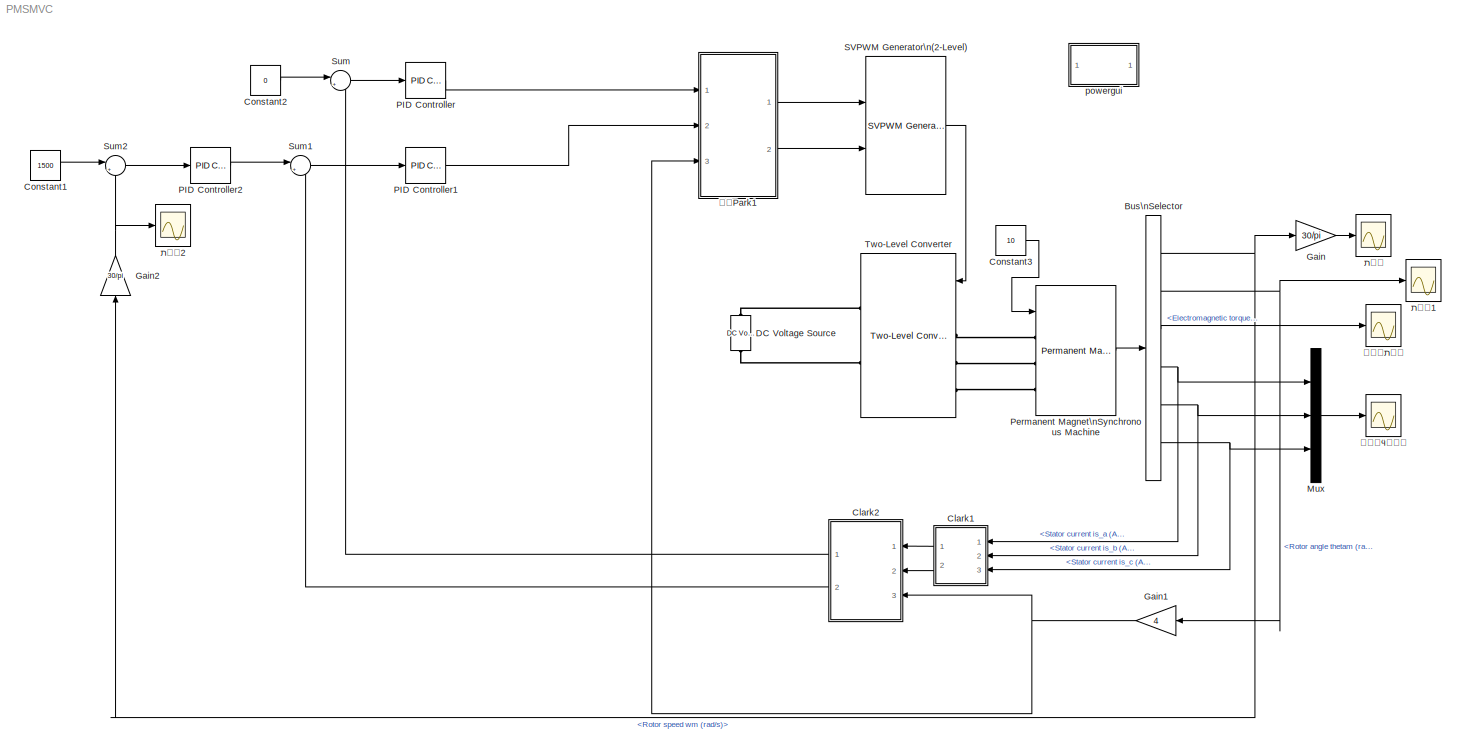
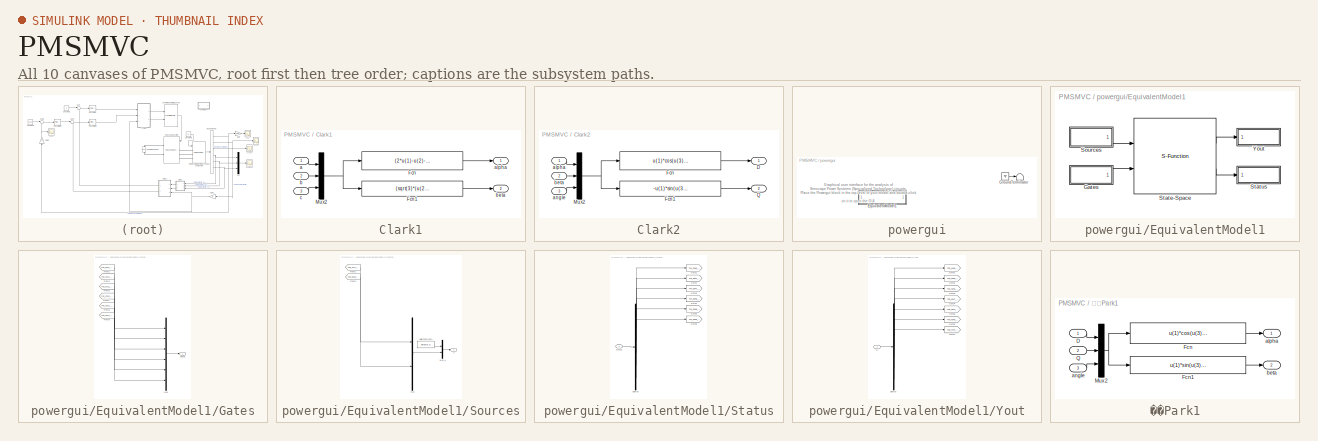
[diagram: thumbnail index - all 10 canvases of the model, root first then tree order]
MODEL PMSMVC
KIND model
BLOCK [BusSelector] Bus\nSelector
  OutputSignals = Rotor speed wm (rad/s),Rotor angle thetam (rad),Electromagnetic torque Te (N*m),Stator current is_a (A),Stator current is_b (A),Stator current is_c (A)
  Ports = [1, 6]
  SID = 5
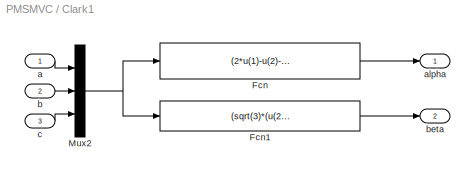
BLOCK [SubSystem] Clark1
  FunctionWithSeparateData = off
  MaskHideContents = off
  MinAlgLoopOccurrences = off
  Opaque = off
  Ports = [3, 2]
  PropExecContextOutsideSubsystem = off
  RTWSystemCode = Auto
  RequestExecContextInheritance = off
  SID = 32
BLOCK [Fcn] Clark1/Fcn
  Expr = (2*u(1)-u(2)-u(3))/3
  SID = 36
BLOCK [Fcn] Clark1/Fcn1
  Expr = (sqrt(3)*(u(2)-u(3)))/3
  SID = 37
BLOCK [Mux] Clark1/Mux2
  DisplayOption = bar
  Inputs = 3
  Ports = [3, 1]
  SID = 38
BLOCK [Inport] Clark1/a
  IconDisplay = Port number
  SID = 33
BLOCK [Outport] Clark1/alpha
  IconDisplay = Port number
  SID = 39
BLOCK [Inport] Clark1/b
  IconDisplay = Port number
  Port = 2
  SID = 34
BLOCK [Outport] Clark1/beta
  IconDisplay = Port number
  Port = 2
  SID = 40
BLOCK [Inport] Clark1/c
  IconDisplay = Port number
  Port = 3
  SID = 35
BLOCK [SubSystem] Clark2
  FunctionWithSeparateData = off
  MaskHideContents = off
  MinAlgLoopOccurrences = off
  Opaque = off
  Ports = [3, 2]
  PropExecContextOutsideSubsystem = off
  RTWSystemCode = Auto
  RequestExecContextInheritance = off
  SID = 41
BLOCK [Outport] Clark2/D
  IconDisplay = Port number
  SID = 48
BLOCK [Fcn] Clark2/Fcn
  Expr = u(1)*cos(u(3))+u(2)*sin(u(3))
  SID = 45
BLOCK [Fcn] Clark2/Fcn1
  Expr = -u(1)*sin(u(3))+u(2)*cos(u(3))
  SID = 46
BLOCK [Mux] Clark2/Mux2
  DisplayOption = bar
  Inputs = 3
  Ports = [3, 1]
  SID = 47
BLOCK [Outport] Clark2/Q
  IconDisplay = Port number
  Port = 2
  SID = 49
BLOCK [Inport] Clark2/alpha
  IconDisplay = Port number
  SID = 42
BLOCK [Inport] Clark2/angle
  IconDisplay = Port number
  Port = 3
  SID = 44
BLOCK [Inport] Clark2/beta
  IconDisplay = Port number
  Port = 2
  SID = 43
BLOCK [Constant] Constant1
  SID = 27
  Value = 1500
BLOCK [Constant] Constant2
  SID = 28
  Value = 0
BLOCK [Constant] Constant3
  SID = 31
  Value = 10
BLOCK [Reference] DC Voltage Source  REF=powerlib/Electrical\nSources/DC Voltage Source
  Amplitude = 560
  Measurements = None
  Ports = [0, 0, 0, 0, 0, 1, 1]
  SID = 3
  SourceBlock = powerlib/Electrical\nSources/DC Voltage Source
  SourceType = DC Voltage Source
BLOCK [Gain] Gain
  Gain = 30/pi
  OutDataTypeMode = Inherit via internal rule
  OutDataTypeStr = Inherit: Inherit via internal rule
  ParamDataTypeStr = Inherit: Inherit via internal rule
  ParameterDataTypeMode = Inherit via internal rule
  SID = 7
  SaturateOnIntegerOverflow = off
BLOCK [Gain] Gain1
  Gain = 4
  OutDataTypeMode = Inherit via internal rule
  OutDataTypeStr = Inherit: Inherit via internal rule
  ParamDataTypeStr = Inherit: Inherit via internal rule
  ParameterDataTypeMode = Inherit via internal rule
  SID = 15
  SaturateOnIntegerOverflow = off
BLOCK [Gain] Gain2
  Gain = 30/pi
  OutDataTypeMode = Inherit via internal rule
  OutDataTypeStr = Inherit: Inherit via internal rule
  ParamDataTypeStr = Inherit: Inherit via internal rule
  ParameterDataTypeMode = Inherit via internal rule
  SID = 26
  SaturateOnIntegerOverflow = off
BLOCK [Mux] Mux
  DisplayOption = bar
  Inputs = 3
  Ports = [3, 1]
  SID = 10
BLOCK [Reference] PID Controller  REF=simulink/Continuous/PID Controller
  AntiWindupMode = none
  Controller = PI
  ControllerParametersSource = internal
  D = 0
  DGainOutDataTypeStr = Inherit: Inherit via internal rule
  DOutDataTypeStr = Inherit: Inherit via internal rule
  DOutMax = []
  DOutMin = []
  DParamDataTypeStr = Inherit: Inherit via internal rule
  DParamMax = []
  DParamMin = []
  DProdOutDataTypeStr = Inherit: Inherit via internal rule
  DifferentiatorICPrevScaledInput = 0
  DifferentiatorOutDataTypeStr = Inherit: Inherit via internal rule
  DifferentiatorOutMax = []
  DifferentiatorOutMin = []
  ExternalReset = none
  FilterContinuousStateAttributes = ''
  FilterMethod = Forward Euler
  FilterOutDataTypeStr = Inherit: Inherit via internal rule
  FilterOutMax = []
  FilterOutMin = []
  FilterRTWStateStorageClass = Auto
  FilterStateMustResolveToSignalObject = off
  Form = Parallel
  I = 5
  IGainOutDataTypeStr = Inherit: Inherit via internal rule
  IOutDataTypeStr = Inherit: Inherit via internal rule
  IOutMax = []
  IOutMin = []
  IParamDataTypeStr = Inherit: Inherit via internal rule
  IParamMax = []
  IParamMin = []
  IProdOutDataTypeStr = Inherit: Inherit via internal rule
  IgnoreLimit = off
  InitialConditionForFilter = 0
  InitialConditionForIntegrator = 0
  InitialConditionSource = internal
  IntegratorContinuousStateAttributes = ''
  IntegratorMethod = Forward Euler
  IntegratorOutDataTypeStr = Inherit: Inherit via internal rule
  IntegratorOutMax = []
  IntegratorOutMin = []
  IntegratorRTWStateStorageClass = Auto
  IntegratorStateMustResolveToSignalObject = off
  Kb = 1
  KbOutDataTypeStr = Inherit: Inherit via internal rule
  KbOutMax = []
  KbOutMin = []
  KbParamDataTypeStr = Inherit: Inherit via internal rule
  KbParamMax = []
  KbParamMin = []
  Kt = 1
  KtOutDataTypeStr = Inherit: Inherit via internal rule
  KtOutMax = []
  KtOutMin = []
  KtParamDataTypeStr = Inherit: Inherit via internal rule
  KtParamMax = []
  KtParamMin = []
  LimitOutput = off
  LinearizeAsGain = on
  LockScale = off
  LowerSaturationLimit = -inf
  N = 100
  NGainOutDataTypeStr = Inherit: Inherit via internal rule
  NOutDataTypeStr = Inherit: Inherit via internal rule
  NOutMax = []
  NOutMin = []
  NParamDataTypeStr = Inherit: Inherit via internal rule
  NParamMax = []
  NParamMin = []
  NProdOutDataTypeStr = Inherit: Inherit via internal rule
  P = 0.4
  PGainOutDataTypeStr = Inherit: Inherit via internal rule
  POutDataTypeStr = Inherit: Inherit via internal rule
  POutMax = []
  POutMin = []
  PParamDataTypeStr = Inherit: Inherit via internal rule
  PParamMax = []
  PParamMin = []
  PProdOutDataTypeStr = Inherit: Inherit via internal rule
  Ports = [1, 1]
  RndMeth = Floor
  SID = 16
  SampleTime = -1
  SaturateOnIntegerOverflow = off
  SaturationOutDataTypeStr = Inherit: Same as input
  SaturationOutMax = []
  SaturationOutMin = []
  SourceBlock = simulink/Continuous/PID Controller
  SourceType = PID 1dof
  SumAccumDataTypeStr = Inherit: Inherit via internal rule
  SumDAccumDataTypeStr = Inherit: Inherit via internal rule
  SumDOutDataTypeStr = Inherit: Inherit via internal rule
  SumDOutMax = []
  SumDOutMin = []
  SumI1AccumDataTypeStr = Inherit: Inherit via internal rule
  SumI1OutDataTypeStr = Inherit: Inherit via internal rule
  SumI1OutMax = []
  SumI1OutMin = []
  SumI2AccumDataTypeStr = Inherit: Inherit via internal rule
  SumI2OutDataTypeStr = Inherit: Inherit via internal rule
  SumI2OutMax = []
  SumI2OutMin = []
  SumI3AccumDataTypeStr = Inherit: Inherit via internal rule
  SumI3OutDataTypeStr = Inherit: Inherit via internal rule
  SumI3OutMax = []
  SumI3OutMin = []
  SumOutDataTypeStr = Inherit: Inherit via internal rule
  SumOutMax = []
  SumOutMin = []
  TimeDomain = Discrete-time
  TrackingMode = off
  UpperSaturationLimit = inf
  UseFilter = on
  ZeroCross = on
BLOCK [Reference] PID Controller1  REF=simulink/Continuous/PID Controller
  AntiWindupMode = none
  Controller = PI
  ControllerParametersSource = internal
  D = 0
  DGainOutDataTypeStr = Inherit: Inherit via internal rule
  DOutDataTypeStr = Inherit: Inherit via internal rule
  DOutMax = []
  DOutMin = []
  DParamDataTypeStr = Inherit: Inherit via internal rule
  DParamMax = []
  DParamMin = []
  DProdOutDataTypeStr = Inherit: Inherit via internal rule
  DifferentiatorICPrevScaledInput = 0
  DifferentiatorOutDataTypeStr = Inherit: Inherit via internal rule
  DifferentiatorOutMax = []
  DifferentiatorOutMin = []
  ExternalReset = none
  FilterContinuousStateAttributes = ''
  FilterMethod = Forward Euler
  FilterOutDataTypeStr = Inherit: Inherit via internal rule
  FilterOutMax = []
  FilterOutMin = []
  FilterRTWStateStorageClass = Auto
  FilterStateMustResolveToSignalObject = off
  Form = Parallel
  I = 5
  IGainOutDataTypeStr = Inherit: Inherit via internal rule
  IOutDataTypeStr = Inherit: Inherit via internal rule
  IOutMax = []
  IOutMin = []
  IParamDataTypeStr = Inherit: Inherit via internal rule
  IParamMax = []
  IParamMin = []
  IProdOutDataTypeStr = Inherit: Inherit via internal rule
  IgnoreLimit = off
  InitialConditionForFilter = 0
  InitialConditionForIntegrator = 0
  InitialConditionSource = internal
  IntegratorContinuousStateAttributes = ''
  IntegratorMethod = Forward Euler
  IntegratorOutDataTypeStr = Inherit: Inherit via internal rule
  IntegratorOutMax = []
  IntegratorOutMin = []
  IntegratorRTWStateStorageClass = Auto
  IntegratorStateMustResolveToSignalObject = off
  Kb = 1
  KbOutDataTypeStr = Inherit: Inherit via internal rule
  KbOutMax = []
  KbOutMin = []
  KbParamDataTypeStr = Inherit: Inherit via internal rule
  KbParamMax = []
  KbParamMin = []
  Kt = 1
  KtOutDataTypeStr = Inherit: Inherit via internal rule
  KtOutMax = []
  KtOutMin = []
  KtParamDataTypeStr = Inherit: Inherit via internal rule
  KtParamMax = []
  KtParamMin = []
  LimitOutput = off
  LinearizeAsGain = on
  LockScale = off
  LowerSaturationLimit = -inf
  N = 100
  NGainOutDataTypeStr = Inherit: Inherit via internal rule
  NOutDataTypeStr = Inherit: Inherit via internal rule
  NOutMax = []
  NOutMin = []
  NParamDataTypeStr = Inherit: Inherit via internal rule
  NParamMax = []
  NParamMin = []
  NProdOutDataTypeStr = Inherit: Inherit via internal rule
  P = 0.4
  PGainOutDataTypeStr = Inherit: Inherit via internal rule
  POutDataTypeStr = Inherit: Inherit via internal rule
  POutMax = []
  POutMin = []
  PParamDataTypeStr = Inherit: Inherit via internal rule
  PParamMax = []
  PParamMin = []
  PProdOutDataTypeStr = Inherit: Inherit via internal rule
  Ports = [1, 1]
  RndMeth = Floor
  SID = 17
  SampleTime = -1
  SaturateOnIntegerOverflow = off
  SaturationOutDataTypeStr = Inherit: Same as input
  SaturationOutMax = []
  SaturationOutMin = []
  SourceBlock = simulink/Continuous/PID Controller
  SourceType = PID 1dof
  SumAccumDataTypeStr = Inherit: Inherit via internal rule
  SumDAccumDataTypeStr = Inherit: Inherit via internal rule
  SumDOutDataTypeStr = Inherit: Inherit via internal rule
  SumDOutMax = []
  SumDOutMin = []
  SumI1AccumDataTypeStr = Inherit: Inherit via internal rule
  SumI1OutDataTypeStr = Inherit: Inherit via internal rule
  SumI1OutMax = []
  SumI1OutMin = []
  SumI2AccumDataTypeStr = Inherit: Inherit via internal rule
  SumI2OutDataTypeStr = Inherit: Inherit via internal rule
  SumI2OutMax = []
  SumI2OutMin = []
  SumI3AccumDataTypeStr = Inherit: Inherit via internal rule
  SumI3OutDataTypeStr = Inherit: Inherit via internal rule
  SumI3OutMax = []
  SumI3OutMin = []
  SumOutDataTypeStr = Inherit: Inherit via internal rule
  SumOutMax = []
  SumOutMin = []
  TimeDomain = Discrete-time
  TrackingMode = off
  UpperSaturationLimit = inf
  UseFilter = on
  ZeroCross = on
BLOCK [Reference] PID Controller2  REF=simulink/Continuous/PID Controller
  AntiWindupMode = none
  Controller = PI
  ControllerParametersSource = internal
  D = 0
  DGainOutDataTypeStr = Inherit: Inherit via internal rule
  DOutDataTypeStr = Inherit: Inherit via internal rule
  DOutMax = []
  DOutMin = []
  DParamDataTypeStr = Inherit: Inherit via internal rule
  DParamMax = []
  DParamMin = []
  DProdOutDataTypeStr = Inherit: Inherit via internal rule
  DifferentiatorICPrevScaledInput = 0
  DifferentiatorOutDataTypeStr = Inherit: Inherit via internal rule
  DifferentiatorOutMax = []
  DifferentiatorOutMin = []
  ExternalReset = none
  FilterContinuousStateAttributes = ''
  FilterMethod = Forward Euler
  FilterOutDataTypeStr = Inherit: Inherit via internal rule
  FilterOutMax = []
  FilterOutMin = []
  FilterRTWStateStorageClass = Auto
  FilterStateMustResolveToSignalObject = off
  Form = Parallel
  I = 10
  IGainOutDataTypeStr = Inherit: Inherit via internal rule
  IOutDataTypeStr = Inherit: Inherit via internal rule
  IOutMax = []
  IOutMin = []
  IParamDataTypeStr = Inherit: Inherit via internal rule
  IParamMax = []
  IParamMin = []
  IProdOutDataTypeStr = Inherit: Inherit via internal rule
  IgnoreLimit = off
  InitialConditionForFilter = 0
  InitialConditionForIntegrator = 0
  InitialConditionSource = internal
  IntegratorContinuousStateAttributes = ''
  IntegratorMethod = Forward Euler
  IntegratorOutDataTypeStr = Inherit: Inherit via internal rule
  IntegratorOutMax = []
  IntegratorOutMin = []
  IntegratorRTWStateStorageClass = Auto
  IntegratorStateMustResolveToSignalObject = off
  Kb = 1
  KbOutDataTypeStr = Inherit: Inherit via internal rule
  KbOutMax = []
  KbOutMin = []
  KbParamDataTypeStr = Inherit: Inherit via internal rule
  KbParamMax = []
  KbParamMin = []
  Kt = 1
  KtOutDataTypeStr = Inherit: Inherit via internal rule
  KtOutMax = []
  KtOutMin = []
  KtParamDataTypeStr = Inherit: Inherit via internal rule
  KtParamMax = []
  KtParamMin = []
  LimitOutput = off
  LinearizeAsGain = on
  LockScale = off
  LowerSaturationLimit = -30
  N = 100
  NGainOutDataTypeStr = Inherit: Inherit via internal rule
  NOutDataTypeStr = Inherit: Inherit via internal rule
  NOutMax = []
  NOutMin = []
  NParamDataTypeStr = Inherit: Inherit via internal rule
  NParamMax = []
  NParamMin = []
  NProdOutDataTypeStr = Inherit: Inherit via internal rule
  P = 0.25
  PGainOutDataTypeStr = Inherit: Inherit via internal rule
  POutDataTypeStr = Inherit: Inherit via internal rule
  POutMax = []
  POutMin = []
  PParamDataTypeStr = Inherit: Inherit via internal rule
  PParamMax = []
  PParamMin = []
  PProdOutDataTypeStr = Inherit: Inherit via internal rule
  Ports = [1, 1]
  RndMeth = Floor
  SID = 18
  SampleTime = -1
  SaturateOnIntegerOverflow = off
  SaturationOutDataTypeStr = Inherit: Same as input
  SaturationOutMax = []
  SaturationOutMin = []
  SourceBlock = simulink/Continuous/PID Controller
  SourceType = PID 1dof
  SumAccumDataTypeStr = Inherit: Inherit via internal rule
  SumDAccumDataTypeStr = Inherit: Inherit via internal rule
  SumDOutDataTypeStr = Inherit: Inherit via internal rule
  SumDOutMax = []
  SumDOutMin = []
  SumI1AccumDataTypeStr = Inherit: Inherit via internal rule
  SumI1OutDataTypeStr = Inherit: Inherit via internal rule
  SumI1OutMax = []
  SumI1OutMin = []
  SumI2AccumDataTypeStr = Inherit: Inherit via internal rule
  SumI2OutDataTypeStr = Inherit: Inherit via internal rule
  SumI2OutMax = []
  SumI2OutMin = []
  SumI3AccumDataTypeStr = Inherit: Inherit via internal rule
  SumI3OutDataTypeStr = Inherit: Inherit via internal rule
  SumI3OutMax = []
  SumI3OutMin = []
  SumOutDataTypeStr = Inherit: Inherit via internal rule
  SumOutMax = []
  SumOutMin = []
  TimeDomain = Discrete-time
  TrackingMode = off
  UpperSaturationLimit = 30
  UseFilter = on
  ZeroCross = on
BLOCK [Reference] Permanent Magnet\nSynchronous Machine  REF=powerlib/Machines/Permanent Magnet\nSynchronous Machine
  Flat = 120
  Flux = 0.1119
  FluxDistribution = Sinusoidal
  Inductance = 8.5e-3
  InitialConditions = [0,0, 0,0]
  InitialConditions5ph = [0 0 0 0 0 0]
  La = 0.00097
  MachineConstant = Flux linkage established by magnets (V.s)
  MeasurementBus = off
  Mechanical = [0.0016 0.0002024 4 0]
  MechanicalLoad = Torque Tm
  NbPhases = 3
  PolePairs = 4
  Ports = [1, 1, 0, 0, 0, 3]
  PresetModel = 11:  26.13 Nm 560 Vdc 3000 RPM - 27.3 Nm
  RefAngle = Aligned with phase A axis (original Park)
  Resistance = 0.11
  RotorType = Round
  SID = 1
  ShowDetailedParameters = on
  SourceBlock = powerlib/Machines/Permanent Magnet\nSynchronous Machine
  SourceType = Permanent Magnet Synchronous Machine
  TorqueCst = 0.6714
  TsBlock = -1
  TsPowergui = 0
  VoltageCst = 81.1857
  dqInductances = [8.5e-3,8.5e-3]
BLOCK [Reference] SVPWM Generator\n(2-Level)  REF=powerlib_meascontrol/Pulse & Signal\nGenerators/SVPWM Generator\n(2-Level)
  Fc = 6000
  InputType = alpha-beta components
  ParUref = [0.8 -30 50]
  Ports = [2, 1]
  SID = 12
  SourceBlock = powerlib_meascontrol/Pulse & Signal\nGenerators/SVPWM Generator\n(2-Level)
  SourceType = SVPWM Generator (2-Level)
  SwitchingPattern = Pattern #1
  Ts = 0
BLOCK [Sum] Sum
  IconShape = round
  InputSameDT = off
  Inputs = |+-
  OutDataTypeMode = Inherit via internal rule
  OutDataTypeStr = Inherit: Inherit via internal rule
  Ports = [2, 1]
  SID = 20
  SaturateOnIntegerOverflow = off
BLOCK [Sum] Sum1
  IconShape = round
  InputSameDT = off
  Inputs = |+-
  OutDataTypeMode = Inherit via internal rule
  OutDataTypeStr = Inherit: Inherit via internal rule
  Ports = [2, 1]
  SID = 21
  SaturateOnIntegerOverflow = off
BLOCK [Sum] Sum2
  IconShape = round
  InputSameDT = off
  Inputs = |+-
  OutDataTypeMode = Inherit via internal rule
  OutDataTypeStr = Inherit: Inherit via internal rule
  Ports = [2, 1]
  SID = 22
  SaturateOnIntegerOverflow = off
BLOCK [Reference] Two-Level Converter  REF=powerlib/Power\nElectronics/Two-Level Converter
  Cs = inf
  Cs_Diode = inf
  ModelType = Switching devices
  Ports = [2, 0, 0, 0, 0, 3, 2]
  Ron = 1e-3
  Ron_Diode = 1e-3
  Rs = 1e6
  Rs_CurrentSource = inf
  Rs_Diode = 1e6
  SID = 4
  SourceBlock = powerlib/Power\nElectronics/Two-Level Converter
  SourceType = Two-Level Converter
  Vf_Diode = 1e-3
  Vforward = [0,0]
BLOCK [SubSystem] powergui
  AncestorBlock = powerlib/powergui
  CopyFcn = powergui( 'Copy_Callback' , gcb , 0 , [ ] );
  DeleteFcn = % see geck 675031 powergui( 'Copy_Callback' , gcb , 1 , [ ] );\n                                                              \npowergui( 'CloseButton_Callback' , gcb , [ ] , [ ] );         \n
  FunctionWithSeparateData = off
  InitFcn = powergui( 'InitFcn_Callback' , gcb , 0 , [ ] );
  MaskCallbackString = powergui('SimulationType',[],[],gcb);|powergui('SolverType',[],[],gcb);|||powergui('SPID',[],[],gcb);||||||powergui('INTERPOLATE',[],[],gcb);||powergui('STORE',[],[],gcb);||||||||||||||||||||||||||||||||
  MaskDescription = Set simulation type, simulation parameters, and preferences.\n
  MaskDisplay = color('blue'),disp(message)
  MaskEnableString = on,on,on,on,on,on,on,on,on,on,on,on,on,on,on,on,on,on,on,on,on,on,on,on,on,on,off,on,on,on,on,on,on,on,on,on,on,on,on,on,on,on,on,on,on
  MaskHelp = helpview(psbhelp)
  MaskHideContents = off
  MaskIconFrame = on
  MaskIconOpaque = on
  MaskIconRotate = none
  MaskIconUnits = autoscale
  MaskInitialization = message = powergui('MaskInitialization',gcb,SimulationMode,SampleTime);
  MaskPortRotate = physical
  MaskPromptString = Simulation type:  |Solver type:|Sample time (s):|Phasor frequency (Hz):|Use ideal switching devices|Disable snubbers in switching devices|Disable On resistance in switching devices (Ron=0)|Disable Forward voltage in switching devices (Vf=0)|Switch tolerance|Display circuit differential equations|Interpolate|Use time-stamped gate signals|Store state-space matrices|Buffer size (MBytes)|Disable Simsc...<+857ch>
  MaskSelfModifiable = on
  MaskStyleString = popup(Continuous|Discrete|Phasor),popup(Tustin/Backward Euler (TBE)|Tustin|Backward Euler),edit,edit,checkbox,checkbox,checkbox,checkbox,edit,checkbox,checkbox,checkbox,checkbox,edit,checkbox,checkbox,checkbox,checkbox,popup(blocks|steady|zero),edit,edit,edit,edit,popup(V|kV),popup(W|kW|MW),edit,popup(yes|warning|no),checkbox,edit,checkbox,checkbox,checkbox,checkbox,edit,edit,checkbox,edit,edit,ed...<+40ch>
  MaskTabNameString = Solver,Solver,Solver,Solver,Solver,Solver,Solver,Solver,Solver,Solver,Solver,Solver,Solver,Solver,Preferences,Preferences,Preferences,Preferences,Preferences,Preferences,Preferences,Preferences,Preferences,Preferences,Preferences,Preferences,Preferences,Preferences,Preferences,Preferences,Preferences,Preferences,Preferences,Preferences,Preferences,Preferences,Preferences,Preferences,Preferences,Pr...<+69ch>
  MaskToolTipString = on,on,on,on,on,on,on,on,on,on,on,on,on,on,on,on,on,on,on,on,on,on,on,on,on,on,on,on,on,on,on,on,on,on,on,on,on,on,on,on,on,on,on,on,on
  MaskTunableValueString = on,on,on,on,on,on,on,on,on,on,on,on,on,on,on,on,on,on,on,on,on,on,on,on,on,on,on,on,on,on,on,on,on,on,on,on,on,on,on,on,on,on,on,on,on
  MaskType = PSB option menu block
  MaskValueString = Discrete|Tustin/Backward Euler (TBE)|1e-6|60|off|off|off|off|0|off|off|off|off|10|off|off|off|off|blocks|0|100e6|1e-4|50|kV|MW|0|warning|off|[0:2:500]|off|on|off|off|ZData|0|off|0.0|1|1|60|off|1000|1|1|off
  MaskVariables = SimulationMode=@1;SolverType=&2;SampleTime=@3;frequency=@4;SPID=@5;DisableSnubberDevices=@6;DisableRonSwitches=@7;DisableVfSwitches=@8;SwTol=@9;DisplayEquations=@10;Interpol=@11;ExternalGateDelay=@12;methode=@13;Ts=@14;FunctionMessages=@15;echomessages=@16;HookPort=@17;EnableUseOfTLC=&18;x0status=@19;frequencyindice=@20;Pbase=@21;ErrMax=@22;Iterations=@23;UnitsV=&24;UnitsW=&25;buscounter=@26;Resto...<+274ch>
  MaskVisibilityString = on,on,on,off,off,off,off,off,off,off,on,off,on,off,on,on,off,on,on,on,on,on,on,on,on,off,off,off,off,off,off,off,off,off,off,off,off,off,off,off,off,off,off,off,off
  MinAlgLoopOccurrences = off
  ModelCloseFcn = powergui( 'CloseButton_Callback' , gcb , [ ] , [ ] );
  NameChangeFcn = powergui( 'NameChangeFcn_Callback' , gcb , 0 , [ ] );
  Opaque = off
  Ports = []
  PreSaveFcn = powergui( 'PreSaveFcn_Callback' , gcb , [ ] , [ ] ); \npowergui( 'CloseButton_Callback' , gcb , [ ] , [ ] );
  Priority = 1
  PropExecContextOutsideSubsystem = off
  RTWSystemCode = Auto
  RequestExecContextInheritance = off
  SID = 29
  StopFcn = powergui( 'StopFcn_Callback' , gcb , 0 , [ ] );
  UserDataPersistent = on
BLOCK [SubSystem] powergui/EquivalentModel1
  FunctionWithSeparateData = off
  MaskDisplay = color('red')\ndisp('EQUIVALENT CIRCUIT\\nDiscrete')
  MaskHideContents = off
  MaskIconFrame = on
  MaskIconOpaque = on
  MaskIconRotate = none
  MaskIconUnits = autoscale
  MaskInitialization = S  = GetDataForEquivalentModel('Discrete',gcbh);
  MaskPortRotate = default
  MinAlgLoopOccurrences = off
  Opaque = off
  Ports = []
  PropExecContextOutsideSubsystem = off
  RTWSystemCode = Auto
  RequestExecContextInheritance = off
  SID = 221
BLOCK [SubSystem] powergui/EquivalentModel1/Gates
  FunctionWithSeparateData = off
  MaskHideContents = off
  MinAlgLoopOccurrences = off
  Opaque = off
  Ports = [0, 1]
  PropExecContextOutsideSubsystem = off
  RTWSystemCode = Auto
  RequestExecContextInheritance = off
  SID = 222
BLOCK [From] powergui/EquivalentModel1/Gates/From1
  GotoTag = T42_3711_2778478290151
  SID = 243
  TagVisibility = global
BLOCK [From] powergui/EquivalentModel1/Gates/From2
  GotoTag = T42_3712_2778214590708
  SID = 244
  TagVisibility = global
BLOCK [From] powergui/EquivalentModel1/Gates/From3
  GotoTag = T42_3712_2777708516562
  SID = 245
  TagVisibility = global
BLOCK [From] powergui/EquivalentModel1/Gates/From4
  GotoTag = T42_3713_2777442452102
  SID = 246
  TagVisibility = global
BLOCK [From] powergui/EquivalentModel1/Gates/From5
  GotoTag = T42_3713_2777025160116
  SID = 247
  TagVisibility = global
BLOCK [From] powergui/EquivalentModel1/Gates/From6
  GotoTag = T42_3714_2776756730639
  SID = 248
  TagVisibility = global
BLOCK [Mux] powergui/EquivalentModel1/Gates/Mux
  DisplayOption = bar
  Inputs = [1 1 1 1 1 1]
  Ports = [6, 1]
  SID = 223
BLOCK [Outport] powergui/EquivalentModel1/Gates/gates
  IconDisplay = Port number
  SID = 224
BLOCK [SubSystem] powergui/EquivalentModel1/Sources
  FunctionWithSeparateData = off
  MaskHideContents = off
  MinAlgLoopOccurrences = off
  Opaque = off
  Ports = [0, 1]
  PropExecContextOutsideSubsystem = off
  RTWSystemCode = Auto
  RequestExecContextInheritance = off
  SID = 225
BLOCK [From] powergui/EquivalentModel1/Sources/From1
  GotoTag = T48_4477_4021991491166
  SID = 256
  TagVisibility = global
BLOCK [From] powergui/EquivalentModel1/Sources/From2
  GotoTag = T29_2519_1610828406010
  SID = 257
  TagVisibility = global
BLOCK [Mux] powergui/EquivalentModel1/Sources/Mux
  DisplayOption = bar
  Inputs = [2 1]
  Ports = [2, 1]
  SID = 226
BLOCK [Mux] powergui/EquivalentModel1/Sources/Mux_u
  DisplayOption = bar
  Inputs = [6 3]
  Ports = [2, 1]
  SID = 227
BLOCK [Constant] powergui/EquivalentModel1/Sources/SwitchCurrents
  SID = 228
  Value = zeros(6,1)
BLOCK [Outport] powergui/EquivalentModel1/Sources/u
  IconDisplay = Port number
  SID = 229
BLOCK [S-Function] powergui/EquivalentModel1/State-Space
  EnableBusSupport = off
  FunctionName = sfun_spssw_discc
  Parameters = S.Ts,S.A, S.B, S.C, S.D, S.x0, S.EnableUseOfTLC,S.SwitchResistance ,S.SwitchType, S.SwitchGateInitialValue, S.OutputsToResetToZero, S.TBEON,S.SaveMatrices,S.BufferSize
  Ports = [2, 2]
  SFunctionDeploymentMode = off
  SID = 230
BLOCK [SubSystem] powergui/EquivalentModel1/Status
  FunctionWithSeparateData = off
  MaskHideContents = off
  MinAlgLoopOccurrences = off
  Opaque = off
  Ports = [1]
  PropExecContextOutsideSubsystem = off
  RTWSystemCode = Auto
  RequestExecContextInheritance = off
  SID = 231
BLOCK [Demux] powergui/EquivalentModel1/Status/Demux
  DisplayOption = bar
  Outputs = [1 1 1 1 1 1]
  Ports = [1, 6]
  SID = 233
BLOCK [Goto] powergui/EquivalentModel1/Status/Goto1
  GotoTag = T44_3946_3353295366570
  SID = 237
  TagVisibility = global
BLOCK [Goto] powergui/EquivalentModel1/Status/Goto2
  GotoTag = T44_3947_3352628682891
  SID = 238
  TagVisibility = global
BLOCK [Goto] powergui/EquivalentModel1/Status/Goto3
  GotoTag = T44_3947_3352191315069
  SID = 239
  TagVisibility = global
BLOCK [Goto] powergui/EquivalentModel1/Status/Goto4
  GotoTag = T44_3948_3351522478874
  SID = 240
  TagVisibility = global
BLOCK [Goto] powergui/EquivalentModel1/Status/Goto5
  GotoTag = T44_3948_3351169752659
  SID = 241
  TagVisibility = global
BLOCK [Goto] powergui/EquivalentModel1/Status/Goto6
  GotoTag = T44_3949_3350498763948
  SID = 242
  TagVisibility = global
BLOCK [Inport] powergui/EquivalentModel1/Status/status
  IconDisplay = Port number
  SID = 232
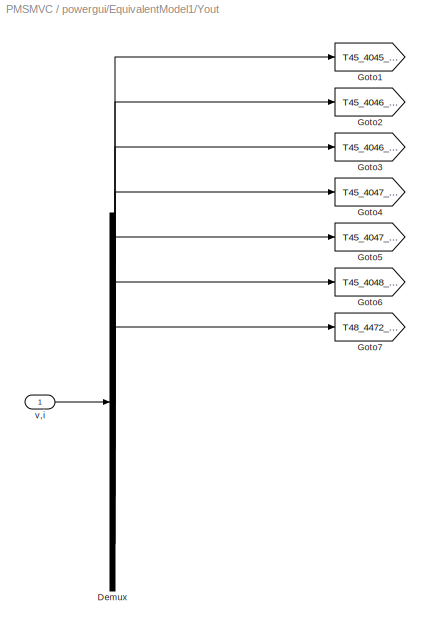
BLOCK [SubSystem] powergui/EquivalentModel1/Yout
  FunctionWithSeparateData = off
  MaskHideContents = off
  MinAlgLoopOccurrences = off
  Opaque = off
  Ports = [1]
  PropExecContextOutsideSubsystem = off
  RTWSystemCode = Auto
  RequestExecContextInheritance = off
  SID = 234
BLOCK [Demux] powergui/EquivalentModel1/Yout/Demux
  DisplayOption = bar
  Outputs = [1 1 1 1 1 1 2]
  Ports = [1, 7]
  SID = 236
BLOCK [Goto] powergui/EquivalentModel1/Yout/Goto1
  GotoTag = T45_4045_3452903094222
  SID = 249
  TagVisibility = global
BLOCK [Goto] powergui/EquivalentModel1/Yout/Goto2
  GotoTag = T45_4046_3452104848707
  SID = 250
  TagVisibility = global
BLOCK [Goto] powergui/EquivalentModel1/Yout/Goto3
  GotoTag = T45_4046_3451693379010
  SID = 251
  TagVisibility = global
BLOCK [Goto] powergui/EquivalentModel1/Yout/Goto4
  GotoTag = T45_4047_3450893076646
  SID = 252
  TagVisibility = global
BLOCK [Goto] powergui/EquivalentModel1/Yout/Goto5
  GotoTag = T45_4047_3450564319798
  SID = 253
  TagVisibility = global
BLOCK [Goto] powergui/EquivalentModel1/Yout/Goto6
  GotoTag = T45_4048_3449761960586
  SID = 254
  TagVisibility = global
BLOCK [Goto] powergui/EquivalentModel1/Yout/Goto7
  GotoTag = T48_4472_3976911859078
  SID = 255
  TagVisibility = global
BLOCK [Inport] powergui/EquivalentModel1/Yout/v,i
  IconDisplay = Port number
  SID = 235
BLOCK [Ground] powergui/Ground
  SID = 55
BLOCK [Terminator] powergui/Terminator
  SID = 56
BLOCK [Scope] 电磁转矩
  DataFormat = Array
  Decimation = 1
  Grid = on
  LimitDataPoints = off
  MaxDataPoints = 5000
  Ports = [1]
  SID = 9
  SampleInput = off
  SampleTime = -1
  SaveName = ScopeData2
  SaveToWorkspace = off
  TickLabels = OneTimeTick
  TimeRange = auto
  YMax = 208.2329
  YMin = -23.13699
  ZoomMode = on
BLOCK [Scope] 定子电流
  DataFormat = Array
  Decimation = 1
  Grid = on
  LimitDataPoints = off
  MaxDataPoints = 5000
  Ports = [1]
  SID = 11
  SampleInput = off
  SampleTime = -1
  SaveName = ScopeData3
  SaveToWorkspace = off
  TickLabels = OneTimeTick
  TimeRange = auto
  YMax = 305.35645
  YMin = -290.8994
  ZoomMode = on
BLOCK [SubSystem] ·´Park1
  FunctionWithSeparateData = off
  MaskHideContents = off
  MinAlgLoopOccurrences = off
  Opaque = off
  Ports = [3, 2]
  PropExecContextOutsideSubsystem = off
  RTWSystemCode = Auto
  RequestExecContextInheritance = off
  SID = 50
BLOCK [Inport] ·´Park1/D
  IconDisplay = Port number
  SID = 51
BLOCK [Fcn] ·´Park1/Fcn
  Expr = u(1)*cos(u(3))-u(2)*sin(u(3))
  SID = 54
BLOCK [Fcn] ·´Park1/Fcn1
  Expr = u(1)*sin(u(3))+u(2)*cos(u(3))
  SID = 55
BLOCK [Mux] ·´Park1/Mux2
  DisplayOption = bar
  Inputs = 3
  Ports = [3, 1]
  SID = 56
BLOCK [Inport] ·´Park1/Q
  IconDisplay = Port number
  Port = 2
  SID = 52
BLOCK [Outport] ·´Park1/alpha
  IconDisplay = Port number
  SID = 57
BLOCK [Inport] ·´Park1/angle
  IconDisplay = Port number
  Port = 3
  SID = 53
BLOCK [Outport] ·´Park1/beta
  IconDisplay = Port number
  Port = 2
  SID = 58
BLOCK [Scope] ×ªËÙ
  DataFormat = StructureWithTime
  Decimation = 1
  Grid = on
  LimitDataPoints = off
  MaxDataPoints = 5000
  Ports = [1]
  SID = 6
  SampleInput = off
  SampleTime = -1
  SaveName = ScopeData
  SaveToWorkspace = off
  TickLabels = OneTimeTick
  TimeRange = auto
  YMax = 1719.21652
  YMin = -192.67389
  ZoomMode = on
BLOCK [Scope] ×ªËÙ1
  DataFormat = Array
  Decimation = 1
  Grid = on
  LimitDataPoints = off
  MaxDataPoints = 5000
  Ports = [1]
  SID = 8
  SampleInput = off
  SampleTime = -1
  SaveName = ScopeData1
  SaveToWorkspace = off
  TickLabels = OneTimeTick
  TimeRange = auto
  YMax = 88.17448
  YMin = -9.79718
  ZoomMode = on
BLOCK [Scope] ×ªËÙ2
  DataFormat = StructureWithTime
  Decimation = 1
  Grid = on
  LimitDataPoints = off
  MaxDataPoints = 5000
  Ports = [1]
  SID = 30
  SampleInput = off
  SampleTime = -1
  SaveName = ScopeData4
  SaveToWorkspace = off
  TickLabels = OneTimeTick
  TimeRange = auto
  YMax = 1719.21652
  YMin = -192.67389
  ZoomMode = on
ANNOTATION powergui: Graphical user interface for the analysis of \nSimscape Power Systems (Specialized Technology) circuits. \nPlace the Powergui block in the top-level of your model and double-click\non it to open the GUI.
NET Bus\nSelector:1 -> Gain2:1, Gain:1
NET Bus\nSelector:2 -> Gain1:1, ×ªËÙ1:1
LINE Bus\nSelector:3 -> 电磁转矩:1
NET Bus\nSelector:4 -> Clark1:1, Mux:1
NET Bus\nSelector:5 -> Clark1:2, Mux:2
NET Bus\nSelector:6 -> Clark1:3, Mux:3
LINE Clark1/Fcn1:1 -> Clark1/beta:1
LINE Clark1/Fcn:1 -> Clark1/alpha:1
NET Clark1/Mux2:1 -> Clark1/Fcn1:1, Clark1/Fcn:1
LINE Clark1/a:1 -> Clark1/Mux2:1
LINE Clark1/b:1 -> Clark1/Mux2:2
LINE Clark1/c:1 -> Clark1/Mux2:3
LINE Clark1:1 -> Clark2:1
LINE Clark1:2 -> Clark2:2
LINE Clark2/Fcn1:1 -> Clark2/Q:1
LINE Clark2/Fcn:1 -> Clark2/D:1
NET Clark2/Mux2:1 -> Clark2/Fcn1:1, Clark2/Fcn:1
LINE Clark2/alpha:1 -> Clark2/Mux2:1
LINE Clark2/angle:1 -> Clark2/Mux2:3
LINE Clark2/beta:1 -> Clark2/Mux2:2
LINE Clark2:1 -> Sum:2
LINE Clark2:2 -> Sum1:2
LINE Constant1:1 -> Sum2:1
LINE Constant2:1 -> Sum:1
LINE Constant3:1 -> Permanent Magnet\nSynchronous Machine:1
NET Gain1:1 -> Clark2:3, ·´Park1:3
NET Gain2:1 -> Sum2:2, ×ªËÙ2:1
LINE Gain:1 -> ×ªËÙ:1
LINE Mux:1 -> 定子电流:1
LINE PID Controller1:1 -> ·´Park1:2
LINE PID Controller2:1 -> Sum1:1
LINE PID Controller:1 -> ·´Park1:1
LINE Permanent Magnet\nSynchronous Machine:1 -> Bus\nSelector:1
LINE SVPWM Generator\n(2-Level):1 -> Two-Level Converter:1
LINE Sum1:1 -> PID Controller1:1
LINE Sum2:1 -> PID Controller2:1
LINE Sum:1 -> PID Controller:1
LINE powergui/EquivalentModel1/Gates/From1:1 -> powergui/EquivalentModel1/Gates/Mux:1
LINE powergui/EquivalentModel1/Gates/From2:1 -> powergui/EquivalentModel1/Gates/Mux:2
LINE powergui/EquivalentModel1/Gates/From3:1 -> powergui/EquivalentModel1/Gates/Mux:3
LINE powergui/EquivalentModel1/Gates/From4:1 -> powergui/EquivalentModel1/Gates/Mux:4
LINE powergui/EquivalentModel1/Gates/From5:1 -> powergui/EquivalentModel1/Gates/Mux:5
LINE powergui/EquivalentModel1/Gates/From6:1 -> powergui/EquivalentModel1/Gates/Mux:6
LINE powergui/EquivalentModel1/Gates/Mux:1 -> powergui/EquivalentModel1/Gates/gates:1
LINE powergui/EquivalentModel1/Gates:1 -> powergui/EquivalentModel1/State-Space:2
LINE powergui/EquivalentModel1/Sources/From1:1 -> powergui/EquivalentModel1/Sources/Mux:1
LINE powergui/EquivalentModel1/Sources/From2:1 -> powergui/EquivalentModel1/Sources/Mux:2
LINE powergui/EquivalentModel1/Sources/Mux:1 -> powergui/EquivalentModel1/Sources/Mux_u:2
LINE powergui/EquivalentModel1/Sources/Mux_u:1 -> powergui/EquivalentModel1/Sources/u:1
LINE powergui/EquivalentModel1/Sources/SwitchCurrents:1 -> powergui/EquivalentModel1/Sources/Mux_u:1
LINE powergui/EquivalentModel1/Sources:1 -> powergui/EquivalentModel1/State-Space:1
LINE powergui/EquivalentModel1/State-Space:1 -> powergui/EquivalentModel1/Yout:1
LINE powergui/EquivalentModel1/State-Space:2 -> powergui/EquivalentModel1/Status:1
LINE powergui/EquivalentModel1/Status/Demux:1 -> powergui/EquivalentModel1/Status/Goto1:1
LINE powergui/EquivalentModel1/Status/Demux:2 -> powergui/EquivalentModel1/Status/Goto2:1
LINE powergui/EquivalentModel1/Status/Demux:3 -> powergui/EquivalentModel1/Status/Goto3:1
LINE powergui/EquivalentModel1/Status/Demux:4 -> powergui/EquivalentModel1/Status/Goto4:1
LINE powergui/EquivalentModel1/Status/Demux:5 -> powergui/EquivalentModel1/Status/Goto5:1
LINE powergui/EquivalentModel1/Status/Demux:6 -> powergui/EquivalentModel1/Status/Goto6:1
LINE powergui/EquivalentModel1/Status/status:1 -> powergui/EquivalentModel1/Status/Demux:1
LINE powergui/EquivalentModel1/Yout/Demux:1 -> powergui/EquivalentModel1/Yout/Goto1:1
LINE powergui/EquivalentModel1/Yout/Demux:2 -> powergui/EquivalentModel1/Yout/Goto2:1
LINE powergui/EquivalentModel1/Yout/Demux:3 -> powergui/EquivalentModel1/Yout/Goto3:1
LINE powergui/EquivalentModel1/Yout/Demux:4 -> powergui/EquivalentModel1/Yout/Goto4:1
LINE powergui/EquivalentModel1/Yout/Demux:5 -> powergui/EquivalentModel1/Yout/Goto5:1
LINE powergui/EquivalentModel1/Yout/Demux:6 -> powergui/EquivalentModel1/Yout/Goto6:1
LINE powergui/EquivalentModel1/Yout/Demux:7 -> powergui/EquivalentModel1/Yout/Goto7:1
LINE powergui/EquivalentModel1/Yout/v,i:1 -> powergui/EquivalentModel1/Yout/Demux:1
LINE powergui/Ground:1 -> powergui/Terminator:1
LINE ·´Park1/D:1 -> ·´Park1/Mux2:1
LINE ·´Park1/Fcn1:1 -> ·´Park1/beta:1
LINE ·´Park1/Fcn:1 -> ·´Park1/alpha:1
NET ·´Park1/Mux2:1 -> ·´Park1/Fcn1:1, ·´Park1/Fcn:1
LINE ·´Park1/Q:1 -> ·´Park1/Mux2:2
LINE ·´Park1/angle:1 -> ·´Park1/Mux2:3
LINE ·´Park1:1 -> SVPWM Generator\n(2-Level):1
LINE ·´Park1:2 -> SVPWM Generator\n(2-Level):2
PLINE DC Voltage Source:LConn1 -- Two-Level Converter:RConn2
PLINE DC Voltage Source:RConn1 -- Two-Level Converter:RConn1
PLINE Permanent Magnet\nSynchronous Machine:LConn1 -- Two-Level Converter:LConn1
PLINE Permanent Magnet\nSynchronous Machine:LConn2 -- Two-Level Converter:LConn2
PLINE Permanent Magnet\nSynchronous Machine:LConn3 -- Two-Level Converter:LConn3
note: NET lines group one-source signal fan-out (src -> all destinations, sorted); 1:1 wires keep LINE
